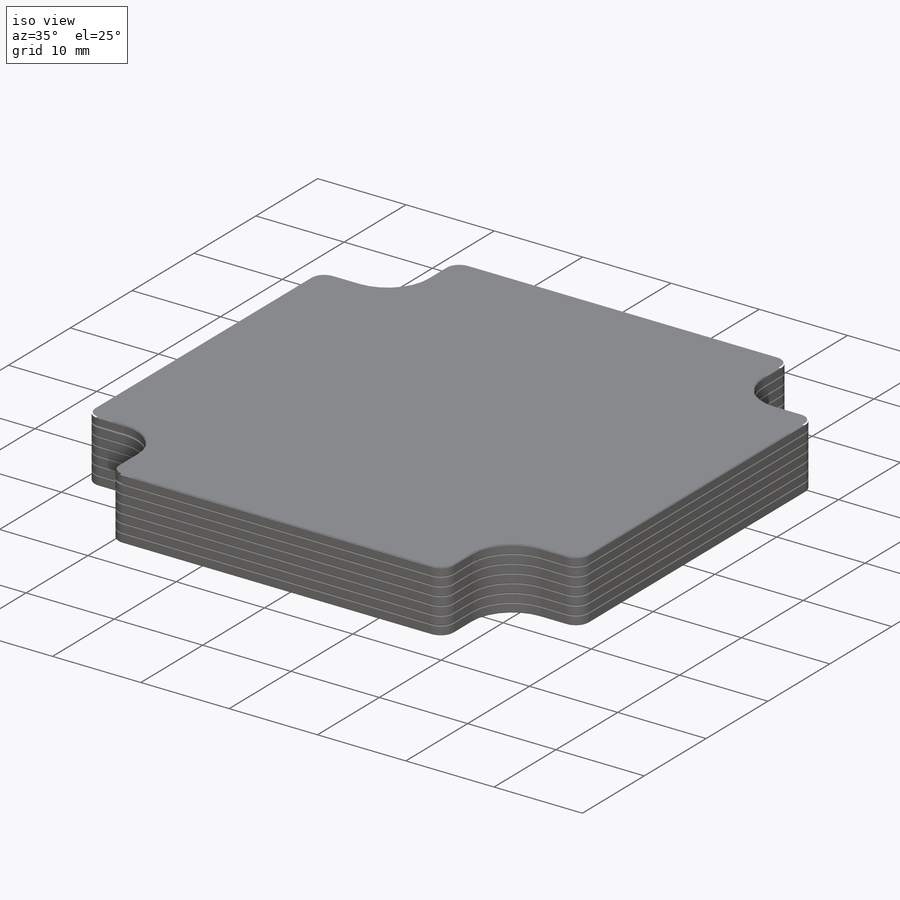
[diagram: iso view]
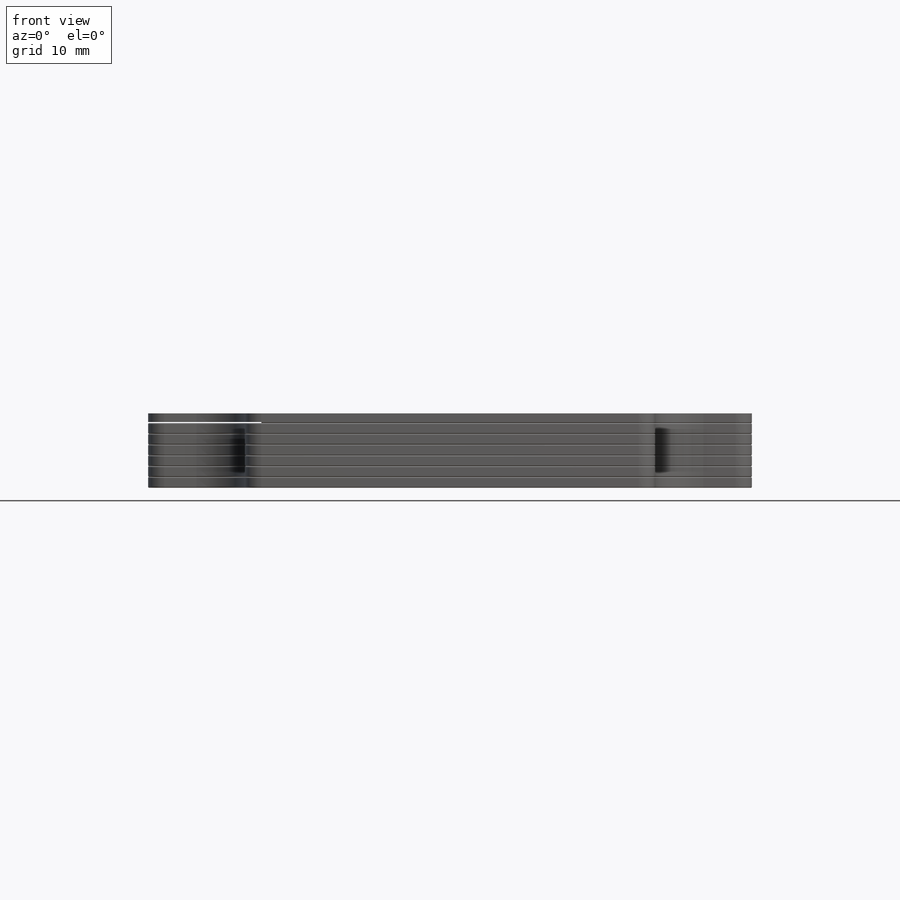
[diagram: front view]
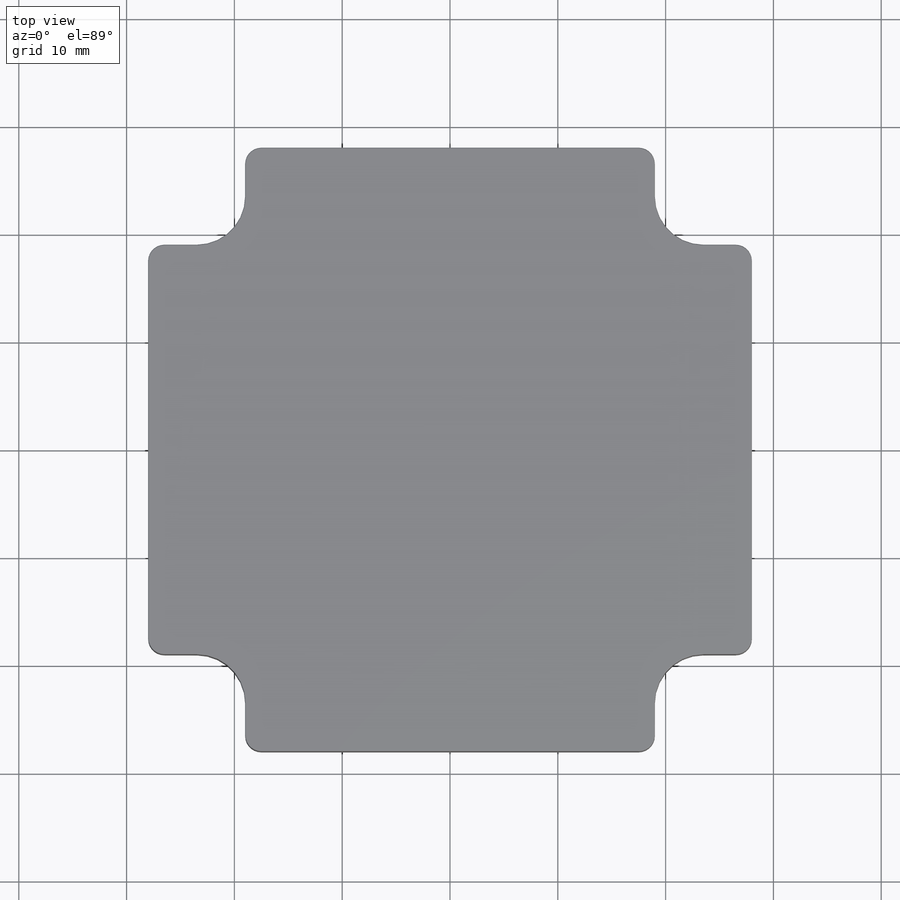
[diagram: top view]
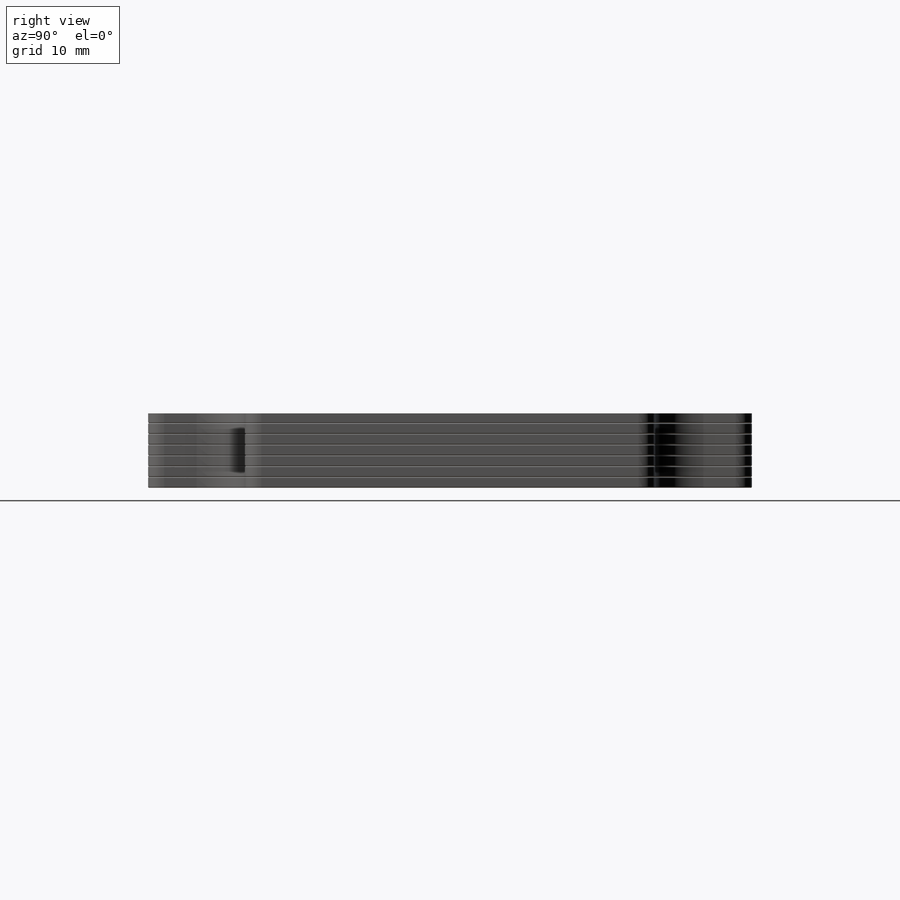
[diagram: right view]
SOLIDWORKS PART (.sldprt)
format: sldprt  version: not decoded by parser v0  size: 10,645,504 bytes
history: native  units: mm
features: sketch x9, extrude x6, fillet x4, plane x3, cut_extrude x3, material x1, pattern_linear x1 (+9 scaffold rows collapsed)
feature tree (36):
  scaffold x9  (default folders/planes/origin — collapsed)
  material  "Материал <не указан>"
  plane  "Спереди"
  plane  "Сверху"
  plane  "Справа"
  sketch  "Эскиз1"  dims[D2=2.0mm D1=56.0mm]
  extrude  "корпус основание"  Depth=5mm
  sketch  "Эскиз2"  dims[c1.D3=1.5mm c1.D8=4.5mm c1.D1=56.0mm c1.D2=56.0mm c2.D3=~3.430995mm]
  extrude  "перед корпус"  Depth=5.5mm
  sketch  "Эскиз4"  dims[D1=0.0mm]
  extrude  "пластина статора"  Depth=1mm
  fillet  "Скругление статора"  Radius=0.1mm
  pattern_linear  "статор"  Count1=53 Count2=1 Spacing1=1mm Spacing2=10mm
  sketch  "Эскиз11"  dims[D1=0.0mm]
  extrude  "зад корпуса"  Depth=11.8mm
  sketch  "Эскиз8"  dims[D1=38.0mm]
  extrude  "кольцо"  Depth=1.7mm
  sketch  "отверстия"  dims[D2=5.0mm D3=5.0mm D4=5.0mm D5=5.0mm D1=47.0mm]
  sketch  "Эскиз7"  dims[D1=6.35mm]
  extrude  "вал"  Depth=40mm
  sketch  "Эскиз10"  dims[D1=11.0mm]
  cut_extrude  "передний подшипник"  Depth=3mm
  sketch  "Эскиз12"  dims[D1=10.8mm]
  cut_extrude  "задний подшипник"  Depth=4.3mm
  fillet  "Скругление2"  Radius=0.1mm
  cut_extrude  "отверстия2"  [1 undecoded]
  fillet  "Скругление3"  Radius=0.1mm
  fillet  "Скругление4"  Radius=0.5mm
decode coverage: 22 of 23 modeling features carry decoded parameters
note: ~ marks probable driven/reference dimensions
note: 1 parameter value undecoded
note: suppression state not decoded; provenance and decode notes live in map.json
